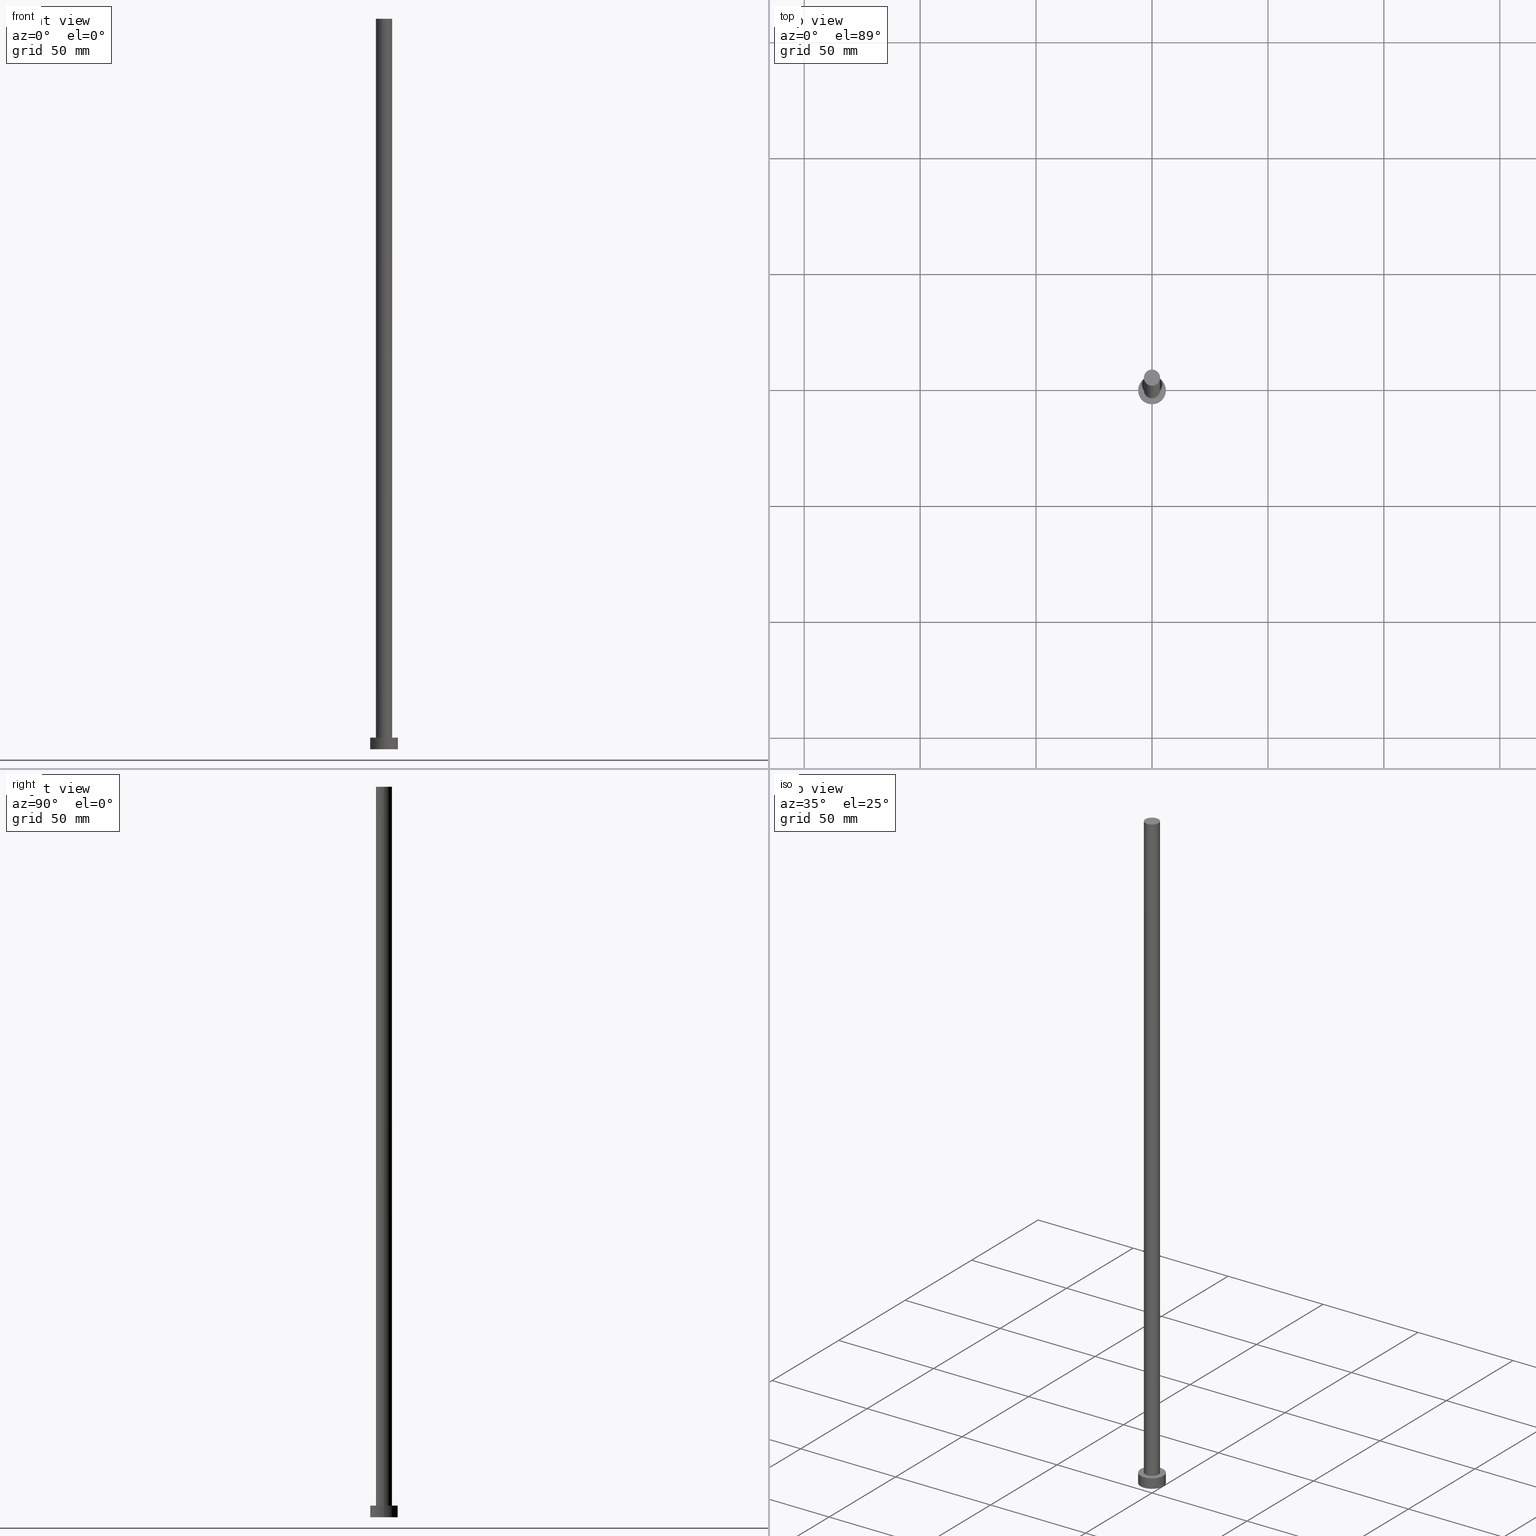
[diagram: canonical four-view strip — front | top / right | iso, engineering-drawing reading convention]
A machine part, canonical four-view strip (front | top / right | iso — engineering-drawing reading convention). The complete STEP part file that produces these views, byte-faithful:
ISO-10303-21;
HEADER;
FILE_DESCRIPTION (( 'STEP AP203' ),
    '1' );
FILE_NAME ('ddec.STEP',
    '2023-02-13T14:51:08',
    ( '' ),
    ( '' ),
    'SwSTEP 2.0',
    'SolidWorks 2019',
    '' );
FILE_SCHEMA (( 'CONFIG_CONTROL_DESIGN' ));
ENDSEC;

DATA;
#1 = PERSON ( 'NEUR�EN�', 'NEUR�EN�', 'NEUR�EN�', ('NEUR�EN�'), ('NEUR�EN�'), ('NEUR�EN�') ) ;
#2 = AXIS2_PLACEMENT_3D ( 'NONE', #105, #181, #204 ) ;
#3 = ORIENTED_EDGE ( 'NONE', *, *, #217, .T. ) ;
#4 = CALENDAR_DATE ( 2023, 13, 2 ) ;
#5 = CARTESIAN_POINT ( 'NONE',  ( 0.000000000000000000, 0.000000000000000000, 5.000000000000000000 ) ) ;
#6 = CLOSED_SHELL ( 'NONE', ( #93, #175, #73, #37, #98, #198, #142 ) ) ;
#7 = EDGE_CURVE ( 'NONE', #200, #49, #132, .T. ) ;
#8 = APPROVAL_DATE_TIME ( #183, #84 ) ;
#9 = ORIENTED_EDGE ( 'NONE', *, *, #158, .T. ) ;
#10 = EDGE_LOOP ( 'NONE', ( #131, #88 ) ) ;
#11 = APPLICATION_PROTOCOL_DEFINITION ( 'international standard', 'config_control_design', 1994, #14 ) ;
#12 = VERTEX_POINT ( 'NONE', #225 ) ;
#13 = UNCERTAINTY_MEASURE_WITH_UNIT (LENGTH_MEASURE( 1.000000000000000082E-05 ), #206, 'distance_accuracy_value', 'NONE');
#14 = APPLICATION_CONTEXT ( 'configuration controlled 3d designs of mechanical parts and assemblies' ) ;
#15 = APPROVAL_DATE_TIME ( #168, #251 ) ;
#16 = DIRECTION ( 'NONE',  ( -0.000000000000000000, -0.000000000000000000, -1.000000000000000000 ) ) ;
#17 = LINE ( 'NONE', #92, #18 ) ;
#18 = VECTOR ( 'NONE', #22, 1000.000000000000000 ) ;
#19 = DIRECTION ( 'NONE',  ( -1.000000000000000000, 0.000000000000000000, 0.000000000000000000 ) ) ;
#20 = LOCAL_TIME ( 15, 51, 8.000000000000000000, #244 ) ;
#21 = COORDINATED_UNIVERSAL_TIME_OFFSET ( 1, 0, .AHEAD. ) ;
#22 = DIRECTION ( 'NONE',  ( -0.000000000000000000, -0.000000000000000000, -1.000000000000000000 ) ) ;
#23 = VECTOR ( 'NONE', #16, 1000.000000000000000 ) ;
#24 = CC_DESIGN_PERSON_AND_ORGANIZATION_ASSIGNMENT ( #199, #121, ( #130 ) ) ;
#25 = PLANE ( 'NONE',  #2 ) ;
#26 = AXIS2_PLACEMENT_3D ( 'NONE', #233, #152, #55 ) ;
#27 = CARTESIAN_POINT ( 'NONE',  ( 3.500000000000000000, 4.286263797015736595E-16, 315.0000000000000000 ) ) ;
#28 =( NAMED_UNIT ( * ) SI_UNIT ( $, .STERADIAN. ) SOLID_ANGLE_UNIT ( ) );
#29 = VERTEX_POINT ( 'NONE', #141 ) ;
#30 = CALENDAR_DATE ( 2023, 13, 2 ) ;
#31 = ORIENTED_EDGE ( 'NONE', *, *, #79, .T. ) ;
#32 = AXIS2_PLACEMENT_3D ( 'NONE', #76, #116, #19 ) ;
#33 = CC_DESIGN_APPROVAL ( #251, ( #57 ) ) ;
#34 = DIRECTION ( 'NONE',  ( 0.000000000000000000, 0.000000000000000000, 1.000000000000000000 ) ) ;
#35 = CARTESIAN_POINT ( 'NONE',  ( 0.000000000000000000, 0.000000000000000000, 5.000000000000000000 ) ) ;
#36 = CC_DESIGN_APPROVAL ( #84, ( #247 ) ) ;
#37 = ADVANCED_FACE ( 'NONE', ( #144, #122 ), #25, .T. ) ;
#38 = CC_DESIGN_DATE_AND_TIME_ASSIGNMENT ( #190, #248, ( #57 ) ) ;
#39 = DATE_AND_TIME ( #62, #20 ) ;
#40 = EDGE_CURVE ( 'NONE', #29, #12, #215, .T. ) ;
#41 = EDGE_LOOP ( 'NONE', ( #69, #63, #220, #150 ) ) ;
#42 = COORDINATED_UNIVERSAL_TIME_OFFSET ( 1, 0, .AHEAD. ) ;
#43 = DIRECTION ( 'NONE',  ( 0.000000000000000000, 0.000000000000000000, 1.000000000000000000 ) ) ;
#44 = AXIS2_PLACEMENT_3D ( 'NONE', #234, #173, #250 ) ;
#45 = CARTESIAN_POINT ( 'NONE',  ( 0.000000000000000000, 0.000000000000000000, 0.000000000000000000 ) ) ;
#46 = PERSON_AND_ORGANIZATION_ROLE ( 'design_owner' ) ;
#47 = APPROVAL_PERSON_ORGANIZATION ( #54, #251, #115 ) ;
#48 = ORIENTED_EDGE ( 'NONE', *, *, #246, .T. ) ;
#49 = VERTEX_POINT ( 'NONE', #202 ) ;
#50 = DIRECTION ( 'NONE',  ( 0.000000000000000000, 0.000000000000000000, 1.000000000000000000 ) ) ;
#51 = EDGE_CURVE ( 'NONE', #208, #157, #75, .T. ) ;
#52 = DIRECTION ( 'NONE',  ( -0.000000000000000000, -0.000000000000000000, -1.000000000000000000 ) ) ;
#53 = LOCAL_TIME ( 15, 51, 8.000000000000000000, #136 ) ;
#54 = PERSON_AND_ORGANIZATION ( #1, #213 ) ;
#55 = DIRECTION ( 'NONE',  ( 1.000000000000000000, 0.000000000000000000, -0.000000000000000000 ) ) ;
#56 = CARTESIAN_POINT ( 'NONE',  ( 0.000000000000000000, 0.000000000000000000, 5.000000000000000000 ) ) ;
#57 = SECURITY_CLASSIFICATION ( '', '', #145 ) ;
#58 = DIRECTION ( 'NONE',  ( -0.000000000000000000, -0.000000000000000000, -1.000000000000000000 ) ) ;
#59 = CIRCLE ( 'NONE', #44, 6.000000000000000888 ) ;
#60 = APPLICATION_CONTEXT ( 'configuration controlled 3d designs of mechanical parts and assemblies' ) ;
#61 = CC_DESIGN_PERSON_AND_ORGANIZATION_ASSIGNMENT ( #212, #170, ( #57 ) ) ;
#62 = CALENDAR_DATE ( 2023, 13, 2 ) ;
#63 = ORIENTED_EDGE ( 'NONE', *, *, #197, .F. ) ;
#64 = CARTESIAN_POINT ( 'NONE',  ( 0.000000000000000000, 0.000000000000000000, 0.000000000000000000 ) ) ;
#65 = VERTEX_POINT ( 'NONE', #27 ) ;
#66 = PERSON_AND_ORGANIZATION_ROLE ( 'design_supplier' ) ;
#67 = VERTEX_POINT ( 'NONE', #109 ) ;
#68 = AXIS2_PLACEMENT_3D ( 'NONE', #171, #169, #96 ) ;
#69 = ORIENTED_EDGE ( 'NONE', *, *, #79, .F. ) ;
#70 = LINE ( 'NONE', #201, #185 ) ;
#71 = ORIENTED_EDGE ( 'NONE', *, *, #119, .F. ) ;
#72 = CARTESIAN_POINT ( 'NONE',  ( 0.000000000000000000, 0.000000000000000000, 5.000000000000000000 ) ) ;
#73 = ADVANCED_FACE ( 'NONE', ( #187 ), #193, .T. ) ;
#74 = CARTESIAN_POINT ( 'NONE',  ( 0.000000000000000000, 0.000000000000000000, 315.0000000000000000 ) ) ;
#75 = CIRCLE ( 'NONE', #125, 6.000000000000000888 ) ;
#76 = CARTESIAN_POINT ( 'NONE',  ( 0.000000000000000000, 0.000000000000000000, 315.0000000000000000 ) ) ;
#77 = CYLINDRICAL_SURFACE ( 'NONE', #32, 3.500000000000000000 ) ;
#78 = PLANE ( 'NONE',  #159 ) ;
#79 = EDGE_CURVE ( 'NONE', #65, #12, #17, .T. ) ;
#80 = AXIS2_PLACEMENT_3D ( 'NONE', #137, #34, #252 ) ;
#81 = ORIENTED_EDGE ( 'NONE', *, *, #195, .F. ) ;
#82 = DATE_AND_TIME ( #4, #196 ) ;
#83 = EDGE_LOOP ( 'NONE', ( #245, #242 ) ) ;
#84 = APPROVAL ( #143, 'NEUR�EN�' ) ;
#85 = PERSON_AND_ORGANIZATION_ROLE ( 'creator' ) ;
#86 = DIRECTION ( 'NONE',  ( 1.000000000000000000, 0.000000000000000000, 0.000000000000000000 ) ) ;
#87 = DIRECTION ( 'NONE',  ( 1.000000000000000000, 0.000000000000000000, 0.000000000000000000 ) ) ;
#88 = ORIENTED_EDGE ( 'NONE', *, *, #158, .F. ) ;
#89 = APPROVAL_STATUS ( 'not_yet_approved' ) ;
#90 = CYLINDRICAL_SURFACE ( 'NONE', #219, 6.000000000000000888 ) ;
#91 = DIRECTION ( 'NONE',  ( 1.000000000000000000, 0.000000000000000000, 0.000000000000000000 ) ) ;
#92 = CARTESIAN_POINT ( 'NONE',  ( 3.500000000000000000, 4.286263797015736595E-16, 315.0000000000000000 ) ) ;
#93 = ADVANCED_FACE ( 'NONE', ( #139 ), #210, .T. ) ;
#94 = DIRECTION ( 'NONE',  ( -1.000000000000000000, 0.000000000000000000, 0.000000000000000000 ) ) ;
#95 = SHAPE_DEFINITION_REPRESENTATION ( #176, #223 ) ;
#96 = DIRECTION ( 'NONE',  ( -1.000000000000000000, 0.000000000000000000, 0.000000000000000000 ) ) ;
#97 = VECTOR ( 'NONE', #58, 1000.000000000000000 ) ;
#98 = ADVANCED_FACE ( 'NONE', ( #214 ), #112, .F. ) ;
#99 = PRODUCT ( 'ddec', 'ddec', '', ( #104 ) ) ;
#100 = PRODUCT_RELATED_PRODUCT_CATEGORY ( 'detail', '', ( #99 ) ) ;
#101 = CARTESIAN_POINT ( 'NONE',  ( -6.000000000000000888, 0.000000000000000000, 5.000000000000000000 ) ) ;
#102 = LOCAL_TIME ( 15, 51, 8.000000000000000000, #21 ) ;
#103 = CARTESIAN_POINT ( 'NONE',  ( 0.000000000000000000, 0.000000000000000000, 0.000000000000000000 ) ) ;
#104 = MECHANICAL_CONTEXT ( 'NONE', #60, 'mechanical' ) ;
#105 = CARTESIAN_POINT ( 'NONE',  ( 0.000000000000000000, 0.000000000000000000, 5.000000000000000000 ) ) ;
#106 = CALENDAR_DATE ( 2023, 13, 2 ) ;
#107 = CARTESIAN_POINT ( 'NONE',  ( 0.000000000000000000, 0.000000000000000000, 5.000000000000000000 ) ) ;
#108 = AXIS2_PLACEMENT_3D ( 'NONE', #64, #123, #87 ) ;
#109 = CARTESIAN_POINT ( 'NONE',  ( -3.500000000000000000, 0.000000000000000000, 315.0000000000000000 ) ) ;
#110 = ORIENTED_EDGE ( 'NONE', *, *, #197, .T. ) ;
#111 = CC_DESIGN_PERSON_AND_ORGANIZATION_ASSIGNMENT ( #163, #66, ( #247 ) ) ;
#112 = PLANE ( 'NONE',  #26 ) ;
#113 = CIRCLE ( 'NONE', #138, 3.500000000000000000 ) ;
#114 = FACE_OUTER_BOUND ( 'NONE', #41, .T. ) ;
#115 = APPROVAL_ROLE ( '' ) ;
#116 = DIRECTION ( 'NONE',  ( -0.000000000000000000, -0.000000000000000000, -1.000000000000000000 ) ) ;
#117 = AXIS2_PLACEMENT_3D ( 'NONE', #35, #249, #194 ) ;
#118 = DIRECTION ( 'NONE',  ( -0.000000000000000000, -0.000000000000000000, -1.000000000000000000 ) ) ;
#119 = EDGE_CURVE ( 'NONE', #67, #29, #254, .T. ) ;
#120 = APPLICATION_PROTOCOL_DEFINITION ( 'international standard', 'config_control_design', 1994, #60 ) ;
#121 = PERSON_AND_ORGANIZATION_ROLE ( 'creator' ) ;
#122 = FACE_OUTER_BOUND ( 'NONE', #83, .T. ) ;
#123 = DIRECTION ( 'NONE',  ( 0.000000000000000000, 0.000000000000000000, 1.000000000000000000 ) ) ;
#124 = DIRECTION ( 'NONE',  ( 1.000000000000000000, 0.000000000000000000, 0.000000000000000000 ) ) ;
#125 = AXIS2_PLACEMENT_3D ( 'NONE', #107, #184, #86 ) ;
#126 =( NAMED_UNIT ( * ) PLANE_ANGLE_UNIT ( ) SI_UNIT ( $, .RADIAN. ) );
#127 = DIRECTION ( 'NONE',  ( 1.000000000000000000, 0.000000000000000000, 0.000000000000000000 ) ) ;
#128 = DESIGN_CONTEXT ( 'detailed design', #14, 'design' ) ;
#129 = ORIENTED_EDGE ( 'NONE', *, *, #51, .F. ) ;
#130 = PRODUCT_DEFINITION ( 'NEZN�M�', '', #247, #128 ) ;
#131 = ORIENTED_EDGE ( 'NONE', *, *, #40, .F. ) ;
#132 = CIRCLE ( 'NONE', #182, 6.000000000000000888 ) ;
#133 = CARTESIAN_POINT ( 'NONE',  ( -6.000000000000000888, 0.000000000000000000, 5.000000000000000000 ) ) ;
#134 = DIRECTION ( 'NONE',  ( -1.000000000000000000, 0.000000000000000000, 0.000000000000000000 ) ) ;
#135 = CC_DESIGN_PERSON_AND_ORGANIZATION_ASSIGNMENT ( #241, #85, ( #247 ) ) ;
#136 = COORDINATED_UNIVERSAL_TIME_OFFSET ( 1, 0, .AHEAD. ) ;
#137 = CARTESIAN_POINT ( 'NONE',  ( 0.000000000000000000, 0.000000000000000000, 315.0000000000000000 ) ) ;
#138 = AXIS2_PLACEMENT_3D ( 'NONE', #151, #192, #91 ) ;
#139 = FACE_OUTER_BOUND ( 'NONE', #189, .T. ) ;
#140 = APPROVAL_PERSON_ORGANIZATION ( #236, #222, #166 ) ;
#141 = CARTESIAN_POINT ( 'NONE',  ( -3.500000000000000000, 0.000000000000000000, 5.000000000000000000 ) ) ;
#142 = ADVANCED_FACE ( 'NONE', ( #154 ), #78, .T. ) ;
#143 = APPROVAL_STATUS ( 'not_yet_approved' ) ;
#144 = FACE_BOUND ( 'NONE', #10, .T. ) ;
#145 = SECURITY_CLASSIFICATION_LEVEL ( 'unclassified' ) ;
#146 = ORIENTED_EDGE ( 'NONE', *, *, #216, .F. ) ;
#147 = DIRECTION ( 'NONE',  ( 1.000000000000000000, 0.000000000000000000, 0.000000000000000000 ) ) ;
#148 = ORIENTED_EDGE ( 'NONE', *, *, #246, .F. ) ;
#149 = CC_DESIGN_PERSON_AND_ORGANIZATION_ASSIGNMENT ( #178, #46, ( #99 ) ) ;
#150 = ORIENTED_EDGE ( 'NONE', *, *, #40, .T. ) ;
#151 = CARTESIAN_POINT ( 'NONE',  ( 0.000000000000000000, 0.000000000000000000, 315.0000000000000000 ) ) ;
#152 = DIRECTION ( 'NONE',  ( 0.000000000000000000, 0.000000000000000000, 1.000000000000000000 ) ) ;
#153 = CC_DESIGN_SECURITY_CLASSIFICATION ( #57, ( #247 ) ) ;
#154 = FACE_OUTER_BOUND ( 'NONE', #164, .T. ) ;
#155 = LINE ( 'NONE', #101, #97 ) ;
#156 = CC_DESIGN_DATE_AND_TIME_ASSIGNMENT ( #82, #160, ( #130 ) ) ;
#157 = VERTEX_POINT ( 'NONE', #133 ) ;
#158 = EDGE_CURVE ( 'NONE', #12, #29, #231, .T. ) ;
#159 = AXIS2_PLACEMENT_3D ( 'NONE', #74, #50, #191 ) ;
#160 = DATE_TIME_ROLE ( 'creation_date' ) ;
#161 = DIRECTION ( 'NONE',  ( 0.000000000000000000, 0.000000000000000000, 1.000000000000000000 ) ) ;
#162 = APPROVAL_PERSON_ORGANIZATION ( #239, #84, #221 ) ;
#163 = PERSON_AND_ORGANIZATION ( #1, #213 ) ;
#164 = EDGE_LOOP ( 'NONE', ( #110, #229 ) ) ;
#165 = ORIENTED_EDGE ( 'NONE', *, *, #7, .F. ) ;
#166 = APPROVAL_ROLE ( '' ) ;
#167 = ORIENTED_EDGE ( 'NONE', *, *, #172, .F. ) ;
#168 = DATE_AND_TIME ( #211, #53 ) ;
#169 = DIRECTION ( 'NONE',  ( -0.000000000000000000, -0.000000000000000000, -1.000000000000000000 ) ) ;
#170 = PERSON_AND_ORGANIZATION_ROLE ( 'classification_officer' ) ;
#171 = CARTESIAN_POINT ( 'NONE',  ( 0.000000000000000000, 0.000000000000000000, 315.0000000000000000 ) ) ;
#172 = EDGE_CURVE ( 'NONE', #157, #208, #59, .T. ) ;
#173 = DIRECTION ( 'NONE',  ( 0.000000000000000000, 0.000000000000000000, 1.000000000000000000 ) ) ;
#174 = CARTESIAN_POINT ( 'NONE',  ( 6.000000000000000888, 7.347880794884120722E-16, 0.000000000000000000 ) ) ;
#175 = ADVANCED_FACE ( 'NONE', ( #232 ), #90, .T. ) ;
#176 = PRODUCT_DEFINITION_SHAPE ( 'NONE', 'NONE',  #130 ) ;
#177 = AXIS2_PLACEMENT_3D ( 'NONE', #56, #118, #94 ) ;
#178 = PERSON_AND_ORGANIZATION ( #1, #213 ) ;
#179 = EDGE_LOOP ( 'NONE', ( #226, #167, #237, #48 ) ) ;
#180 = COORDINATED_UNIVERSAL_TIME_OFFSET ( 1, 0, .AHEAD. ) ;
#181 = DIRECTION ( 'NONE',  ( 0.000000000000000000, 0.000000000000000000, 1.000000000000000000 ) ) ;
#182 = AXIS2_PLACEMENT_3D ( 'NONE', #45, #43, #127 ) ;
#183 = DATE_AND_TIME ( #106, #205 ) ;
#184 = DIRECTION ( 'NONE',  ( 0.000000000000000000, 0.000000000000000000, 1.000000000000000000 ) ) ;
#185 = VECTOR ( 'NONE', #203, 1000.000000000000000 ) ;
#186 = CC_DESIGN_APPROVAL ( #222, ( #130 ) ) ;
#187 = FACE_OUTER_BOUND ( 'NONE', #179, .T. ) ;
#188 = DIRECTION ( 'NONE',  ( 0.000000000000000000, 0.000000000000000000, 1.000000000000000000 ) ) ;
#189 = EDGE_LOOP ( 'NONE', ( #81, #31, #9, #71 ) ) ;
#190 = DATE_AND_TIME ( #30, #102 ) ;
#191 = DIRECTION ( 'NONE',  ( 1.000000000000000000, 0.000000000000000000, -0.000000000000000000 ) ) ;
#192 = DIRECTION ( 'NONE',  ( 0.000000000000000000, 0.000000000000000000, 1.000000000000000000 ) ) ;
#193 = CYLINDRICAL_SURFACE ( 'NONE', #177, 6.000000000000000888 ) ;
#194 = DIRECTION ( 'NONE',  ( 1.000000000000000000, 0.000000000000000000, 0.000000000000000000 ) ) ;
#195 = EDGE_CURVE ( 'NONE', #65, #67, #113, .T. ) ;
#196 = LOCAL_TIME ( 15, 51, 8.000000000000000000, #180 ) ;
#197 = EDGE_CURVE ( 'NONE', #67, #65, #255, .T. ) ;
#198 = ADVANCED_FACE ( 'NONE', ( #114 ), #77, .T. ) ;
#199 = PERSON_AND_ORGANIZATION ( #1, #213 ) ;
#200 = VERTEX_POINT ( 'NONE', #174 ) ;
#201 = CARTESIAN_POINT ( 'NONE',  ( 6.000000000000000888, 7.347880794884120722E-16, 5.000000000000000000 ) ) ;
#202 = CARTESIAN_POINT ( 'NONE',  ( -6.000000000000000888, 0.000000000000000000, 0.000000000000000000 ) ) ;
#203 = DIRECTION ( 'NONE',  ( -0.000000000000000000, -0.000000000000000000, -1.000000000000000000 ) ) ;
#204 = DIRECTION ( 'NONE',  ( 1.000000000000000000, 0.000000000000000000, -0.000000000000000000 ) ) ;
#205 = LOCAL_TIME ( 15, 51, 8.000000000000000000, #42 ) ;
#206 =( LENGTH_UNIT ( ) NAMED_UNIT ( * ) SI_UNIT ( .MILLI., .METRE. ) );
#207 = EDGE_LOOP ( 'NONE', ( #129, #3, #240, #146 ) ) ;
#208 = VERTEX_POINT ( 'NONE', #253 ) ;
#209 = AXIS2_PLACEMENT_3D ( 'NONE', #103, #188, #147 ) ;
#210 = CYLINDRICAL_SURFACE ( 'NONE', #68, 3.500000000000000000 ) ;
#211 = CALENDAR_DATE ( 2023, 13, 2 ) ;
#212 = PERSON_AND_ORGANIZATION ( #1, #213 ) ;
#213 = ORGANIZATION ( 'NEUR�EN�', 'NEUR�EN�', '' ) ;
#214 = FACE_OUTER_BOUND ( 'NONE', #224, .T. ) ;
#215 = CIRCLE ( 'NONE', #235, 3.500000000000000000 ) ;
#216 = EDGE_CURVE ( 'NONE', #157, #49, #155, .T. ) ;
#217 = EDGE_CURVE ( 'NONE', #208, #200, #70, .T. ) ;
#218 = APPROVAL_DATE_TIME ( #39, #222 ) ;
#219 = AXIS2_PLACEMENT_3D ( 'NONE', #72, #52, #134 ) ;
#220 = ORIENTED_EDGE ( 'NONE', *, *, #119, .T. ) ;
#221 = APPROVAL_ROLE ( '' ) ;
#222 = APPROVAL ( #89, 'NEUR�EN�' ) ;
#223 = ADVANCED_BREP_SHAPE_REPRESENTATION ( 'ddec', ( #243, #209 ), #227 ) ;
#224 = EDGE_LOOP ( 'NONE', ( #148, #165 ) ) ;
#225 = CARTESIAN_POINT ( 'NONE',  ( 3.500000000000000000, 4.286263797015736595E-16, 5.000000000000000000 ) ) ;
#226 = ORIENTED_EDGE ( 'NONE', *, *, #217, .F. ) ;
#227 =( GEOMETRIC_REPRESENTATION_CONTEXT ( 3 ) GLOBAL_UNCERTAINTY_ASSIGNED_CONTEXT ( ( #13 ) ) GLOBAL_UNIT_ASSIGNED_CONTEXT ( ( #206, #126, #28 ) ) REPRESENTATION_CONTEXT ( 'NONE', 'WORKASPACE' ) );
#228 = APPROVAL_STATUS ( 'not_yet_approved' ) ;
#229 = ORIENTED_EDGE ( 'NONE', *, *, #195, .T. ) ;
#230 = CARTESIAN_POINT ( 'NONE',  ( -3.500000000000000000, 0.000000000000000000, 315.0000000000000000 ) ) ;
#231 = CIRCLE ( 'NONE', #117, 3.500000000000000000 ) ;
#232 = FACE_OUTER_BOUND ( 'NONE', #207, .T. ) ;
#233 = CARTESIAN_POINT ( 'NONE',  ( 0.000000000000000000, 0.000000000000000000, 0.000000000000000000 ) ) ;
#234 = CARTESIAN_POINT ( 'NONE',  ( 0.000000000000000000, 0.000000000000000000, 5.000000000000000000 ) ) ;
#235 = AXIS2_PLACEMENT_3D ( 'NONE', #5, #161, #124 ) ;
#236 = PERSON_AND_ORGANIZATION ( #1, #213 ) ;
#237 = ORIENTED_EDGE ( 'NONE', *, *, #216, .T. ) ;
#238 = CIRCLE ( 'NONE', #108, 6.000000000000000888 ) ;
#239 = PERSON_AND_ORGANIZATION ( #1, #213 ) ;
#240 = ORIENTED_EDGE ( 'NONE', *, *, #7, .T. ) ;
#241 = PERSON_AND_ORGANIZATION ( #1, #213 ) ;
#242 = ORIENTED_EDGE ( 'NONE', *, *, #51, .T. ) ;
#243 = MANIFOLD_SOLID_BREP ( 'P�idat vysunut�m3', #6 ) ;
#244 = COORDINATED_UNIVERSAL_TIME_OFFSET ( 1, 0, .AHEAD. ) ;
#245 = ORIENTED_EDGE ( 'NONE', *, *, #172, .T. ) ;
#246 = EDGE_CURVE ( 'NONE', #49, #200, #238, .T. ) ;
#247 = PRODUCT_DEFINITION_FORMATION_WITH_SPECIFIED_SOURCE ( 'LIBOVOLN�', '', #99, .NOT_KNOWN. ) ;
#248 = DATE_TIME_ROLE ( 'classification_date' ) ;
#249 = DIRECTION ( 'NONE',  ( 0.000000000000000000, 0.000000000000000000, 1.000000000000000000 ) ) ;
#250 = DIRECTION ( 'NONE',  ( 1.000000000000000000, 0.000000000000000000, 0.000000000000000000 ) ) ;
#251 = APPROVAL ( #228, 'NEUR�EN�' ) ;
#252 = DIRECTION ( 'NONE',  ( 1.000000000000000000, 0.000000000000000000, 0.000000000000000000 ) ) ;
#253 = CARTESIAN_POINT ( 'NONE',  ( 6.000000000000000888, 7.347880794884120722E-16, 5.000000000000000000 ) ) ;
#254 = LINE ( 'NONE', #230, #23 ) ;
#255 = CIRCLE ( 'NONE', #80, 3.500000000000000000 ) ;
ENDSEC;
END-ISO-10303-21;
